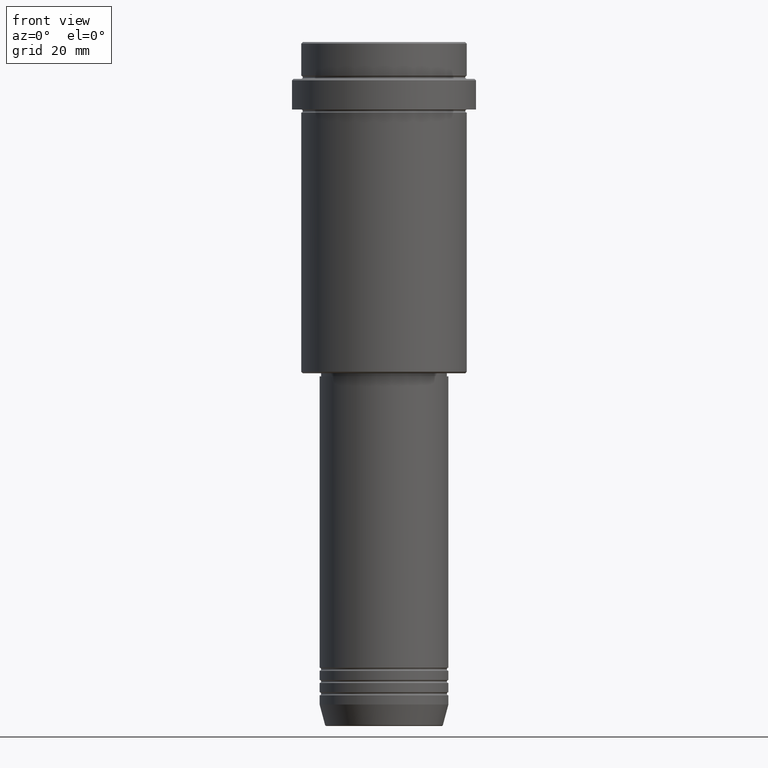
[diagram: clean part render]
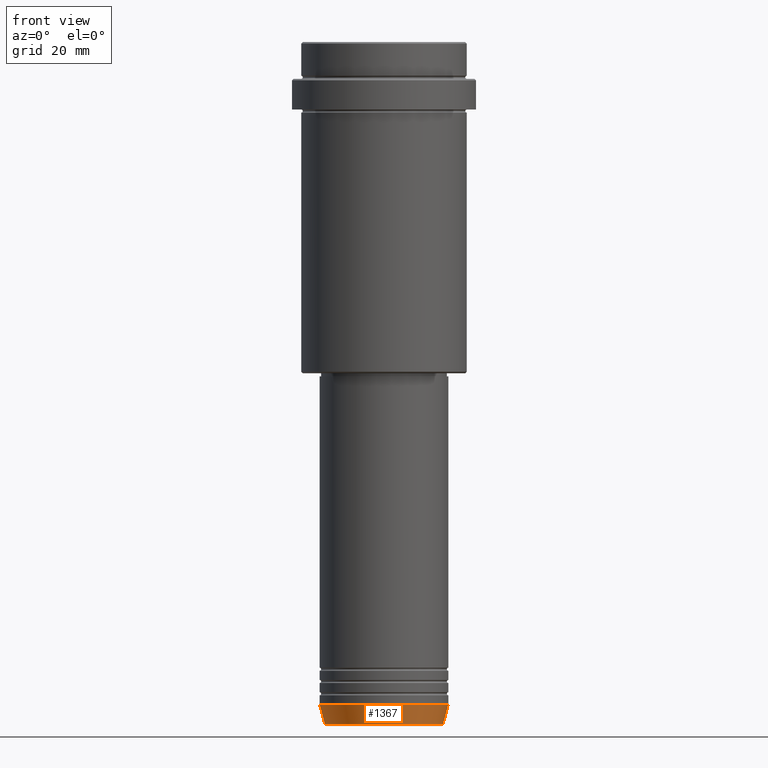
[diagram: same view with one face highlighted and labeled with its STEP entity id]
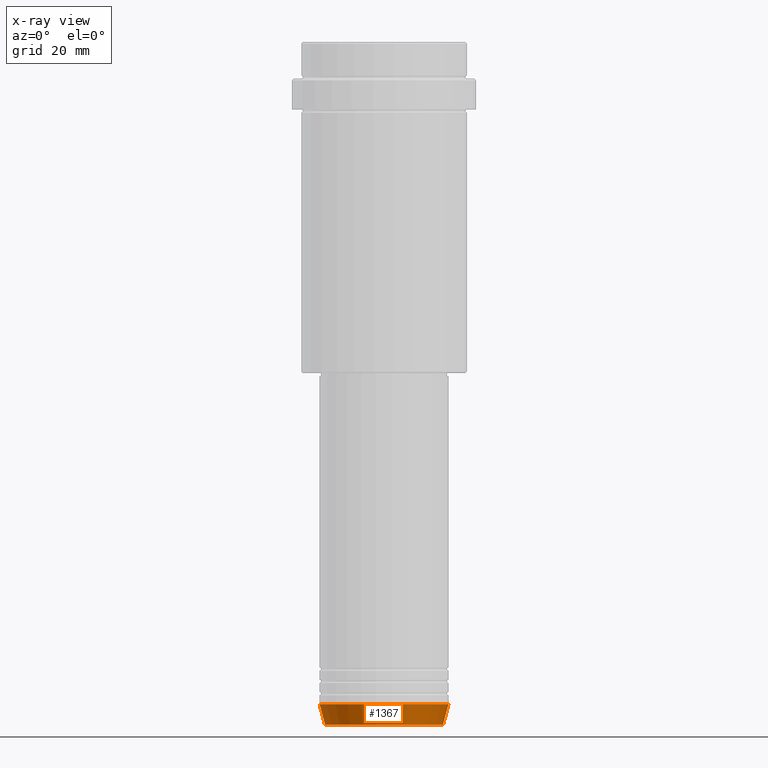
[diagram: x-ray of the same camera — body ghosted, the highlighted face saturated]
A machine part, front view. The second image highlights one B-rep face of the part: STEP entity #1367.
The next image is the same camera in x-ray: the body ghosted, the highlighted face saturated — about 0% of this face is hidden behind the body in this view.
In plain terms, the highlighted conical surface has half-angle 15 deg.
Its self-contained STEP definition (entity closure, byte-faithful):
#37 = CARTESIAN_POINT ( 'NONE',  ( -21.00000000000000000, 2.571758278209441661E-15, -216.0000000000000284 ) ) ;
#50 = AXIS2_PLACEMENT_3D ( 'NONE', #651, #106, #167 ) ;
#59 = CARTESIAN_POINT ( 'NONE',  ( 21.00000000000000000, 0.000000000000000000, -216.0000000000000284 ) ) ;
#74 = VECTOR ( 'NONE', #735, 1000.000000000000000 ) ;
#106 = DIRECTION ( 'NONE',  ( -0.000000000000000000, -0.000000000000000000, 1.000000000000000000 ) ) ;
#113 = EDGE_CURVE ( 'NONE', #627, #1089, #1378, .T. ) ;
#167 = DIRECTION ( 'NONE',  ( 1.000000000000000000, 0.000000000000000000, 0.000000000000000000 ) ) ;
#191 = EDGE_LOOP ( 'NONE', ( #602, #205, #1364, #976 ) ) ;
#193 = CARTESIAN_POINT ( 'NONE',  ( 21.00000000000000000, 0.000000000000000000, -216.0000000000000284 ) ) ;
#205 = ORIENTED_EDGE ( 'NONE', *, *, #580, .T. ) ;
#209 = FACE_OUTER_BOUND ( 'NONE', #191, .T. ) ;
#222 = CIRCLE ( 'NONE', #739, 19.22365507213719127 ) ;
#270 = CARTESIAN_POINT ( 'NONE',  ( -19.22365507213719127, 2.462988521705000655E-15, -222.6294095225512990 ) ) ;
#294 = DIRECTION ( 'NONE',  ( -0.000000000000000000, -0.000000000000000000, 1.000000000000000000 ) ) ;
#351 = CARTESIAN_POINT ( 'NONE',  ( 19.22365507213719127, 0.000000000000000000, -222.6294095225512990 ) ) ;
#408 = LINE ( 'NONE', #193, #74 ) ;
#430 = AXIS2_PLACEMENT_3D ( 'NONE', #465, #1356, #1347 ) ;
#465 = CARTESIAN_POINT ( 'NONE',  ( 0.000000000000000000, 0.000000000000000000, -216.0000000000000284 ) ) ;
#496 = LINE ( 'NONE', #37, #854 ) ;
#497 = EDGE_CURVE ( 'NONE', #821, #1089, #408, .T. ) ;
#580 = EDGE_CURVE ( 'NONE', #1376, #821, #222, .T. ) ;
#602 = ORIENTED_EDGE ( 'NONE', *, *, #1379, .F. ) ;
#627 = VERTEX_POINT ( 'NONE', #1294 ) ;
#651 = CARTESIAN_POINT ( 'NONE',  ( 0.000000000000000000, 0.000000000000000000, -216.0000000000000284 ) ) ;
#735 = DIRECTION ( 'NONE',  ( 0.2588190451025213501, 0.000000000000000000, 0.9659258262890680902 ) ) ;
#739 = AXIS2_PLACEMENT_3D ( 'NONE', #855, #294, #1285 ) ;
#821 = VERTEX_POINT ( 'NONE', #351 ) ;
#854 = VECTOR ( 'NONE', #1033, 1000.000000000000000 ) ;
#855 = CARTESIAN_POINT ( 'NONE',  ( 0.000000000000000000, 0.000000000000000000, -222.6294095225512990 ) ) ;
#976 = ORIENTED_EDGE ( 'NONE', *, *, #113, .F. ) ;
#1033 = DIRECTION ( 'NONE',  ( -0.2588190451025213501, 3.169619151431772337E-17, 0.9659258262890680902 ) ) ;
#1089 = VERTEX_POINT ( 'NONE', #59 ) ;
#1102 = CONICAL_SURFACE ( 'NONE', #50, 21.00000000000000000, 0.2617993877991500740 ) ;
#1285 = DIRECTION ( 'NONE',  ( 1.000000000000000000, 0.000000000000000000, 0.000000000000000000 ) ) ;
#1294 = CARTESIAN_POINT ( 'NONE',  ( -21.00000000000000000, 2.571758278209441661E-15, -216.0000000000000284 ) ) ;
#1347 = DIRECTION ( 'NONE',  ( 1.000000000000000000, 0.000000000000000000, 0.000000000000000000 ) ) ;
#1356 = DIRECTION ( 'NONE',  ( -0.000000000000000000, -0.000000000000000000, 1.000000000000000000 ) ) ;
#1364 = ORIENTED_EDGE ( 'NONE', *, *, #497, .T. ) ;
#1367 = ADVANCED_FACE ( 'NONE', ( #209 ), #1102, .T. ) ;
#1376 = VERTEX_POINT ( 'NONE', #270 ) ;
#1378 = CIRCLE ( 'NONE', #430, 21.00000000000000000 ) ;
#1379 = EDGE_CURVE ( 'NONE', #1376, #627, #496, .T. ) ;